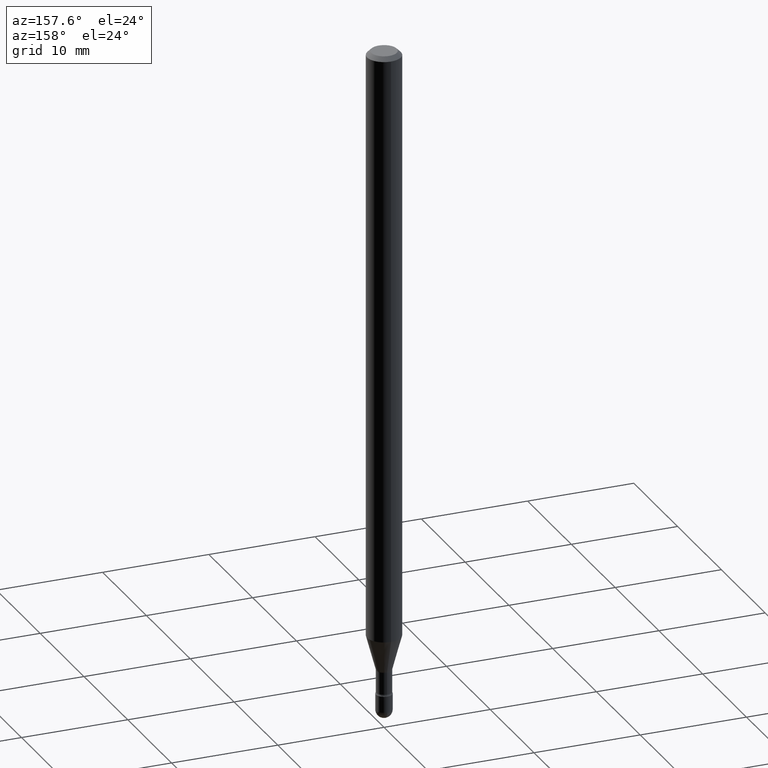
[diagram: clean part render]
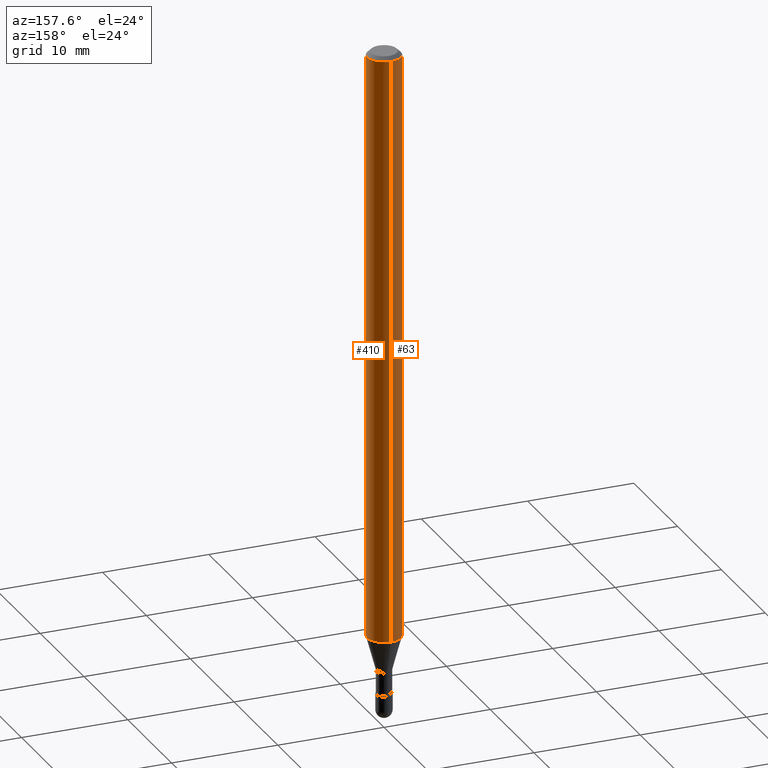
[diagram: same view with one multi-face feature highlighted, each face labeled with its STEP entity id]
A machine part, auxiliary view. The highlighted faces form ONE feature: a constant-radius fillet chain: 2 tangent blend faces with common blend radius 1.5875 mm. The faces share edges in the B-rep.
Their STEP definitions:
[1] entity #410 (Cylinder):
#15 = EDGE_CURVE ( 'NONE', #303, #379, #208, .T. ) ;
#42 = CARTESIAN_POINT ( 'NONE',  ( 4.440892098501159629E-16, 0.06249999999999233252, -2.191990657300388001 ) ) ;
#50 = ORIENTED_EDGE ( 'NONE', *, *, #361, .T. ) ;
#66 = DIRECTION ( 'NONE',  ( -6.982962677686265922E-15, -1.000000000000000000, 4.370956789862821150E-15 ) ) ;
#89 = ORIENTED_EDGE ( 'NONE', *, *, #15, .F. ) ;
#94 = DIRECTION ( 'NONE',  ( -2.445513622403205886E-29, 3.491417159468089197E-15, 1.000000000000000000 ) ) ;
#96 = DIRECTION ( 'NONE',  ( -2.445513622403205886E-29, 3.491417159468089591E-15, 1.000000000000000000 ) ) ;
#98 = CARTESIAN_POINT ( 'NONE',  ( -4.364351673553382241E-16, -0.06250000000000768829, -2.191990657300387557 ) ) ;
#111 = AXIS2_PLACEMENT_3D ( 'NONE', #384, #96, #269 ) ;
#123 = CARTESIAN_POINT ( 'NONE',  ( 3.668270433604828955E-31, -5.237125739202163402E-17, -0.01500000000000008271 ) ) ;
#187 = LINE ( 'NONE', #342, #232 ) ;
#208 = CIRCLE ( 'NONE', #218, 0.06250000000000000000 ) ;
#218 = AXIS2_PLACEMENT_3D ( 'NONE', #123, #298, #468 ) ;
#228 = CARTESIAN_POINT ( 'NONE',  ( -4.364351673553912750E-16, -0.06250000000000005551, -0.01499999999999986587 ) ) ;
#232 = VECTOR ( 'NONE', #473, 39.37007874015748143 ) ;
#236 = CARTESIAN_POINT ( 'NONE',  ( -4.364351673553916201E-16, -0.06250000000000000000, 6.962869713580016380E-16 ) ) ;
#239 = EDGE_CURVE ( 'NONE', #346, #303, #308, .T. ) ;
#269 = DIRECTION ( 'NONE',  ( -6.982962677686265922E-15, -1.000000000000000000, 3.491417159468089197E-15 ) ) ;
#275 = FACE_OUTER_BOUND ( 'NONE', #311, .T. ) ;
#288 = DIRECTION ( 'NONE',  ( -2.445513622403205886E-29, 3.491417159468089591E-15, 1.000000000000000000 ) ) ;
#298 = DIRECTION ( 'NONE',  ( -2.445513622403205886E-29, 3.491417159468089591E-15, 1.000000000000000000 ) ) ;
#303 = VERTEX_POINT ( 'NONE', #228 ) ;
#308 = LINE ( 'NONE', #236, #404 ) ;
#311 = EDGE_LOOP ( 'NONE', ( #50, #555, #89, #553 ) ) ;
#342 = CARTESIAN_POINT ( 'NONE',  ( 4.440892098500625669E-16, 0.06250000000000000000, 2.598598264244904884E-16 ) ) ;
#346 = VERTEX_POINT ( 'NONE', #98 ) ;
#361 = EDGE_CURVE ( 'NONE', #346, #522, #372, .T. ) ;
#372 = CIRCLE ( 'NONE', #411, 0.06250000000000000000 ) ;
#375 = CARTESIAN_POINT ( 'NONE',  ( 4.440892098501165545E-16, 0.06249999999999995143, -0.01500000000000030129 ) ) ;
#379 = VERTEX_POINT ( 'NONE', #375 ) ;
#384 = CARTESIAN_POINT ( 'NONE',  ( -1.169113584055446105E-44, 1.669184350826100908E-30, 4.780733988912460139E-16 ) ) ;
#404 = VECTOR ( 'NONE', #94, 39.37007874015748143 ) ;
#410 = ADVANCED_FACE ( 'NONE', ( #275 ), #559, .T. ) ;
#411 = AXIS2_PLACEMENT_3D ( 'NONE', #543, #288, #66 ) ;
#468 = DIRECTION ( 'NONE',  ( -6.982962677686265922E-15, -1.000000000000000000, 3.483106191921935554E-15 ) ) ;
#473 = DIRECTION ( 'NONE',  ( -2.445513622403205886E-29, 3.491417159468089197E-15, 1.000000000000000000 ) ) ;
#522 = VERTEX_POINT ( 'NONE', #42 ) ;
#525 = EDGE_CURVE ( 'NONE', #522, #379, #187, .T. ) ;
#543 = CARTESIAN_POINT ( 'NONE',  ( 5.360543012608655241E-29, -7.653153794292311533E-15, -2.191990657300388001 ) ) ;
#553 = ORIENTED_EDGE ( 'NONE', *, *, #239, .F. ) ;
#555 = ORIENTED_EDGE ( 'NONE', *, *, #525, .T. ) ;
#559 = CYLINDRICAL_SURFACE ( 'NONE', #111, 0.06250000000000000000 ) ;
[2] entity #63 (Cylinder):
#5 = EDGE_LOOP ( 'NONE', ( #270, #129, #211, #274 ) ) ;
#12 = CARTESIAN_POINT ( 'NONE',  ( 3.668270433604828955E-31, -5.237125739202163402E-17, -0.01500000000000008271 ) ) ;
#42 = CARTESIAN_POINT ( 'NONE',  ( 4.440892098501159629E-16, 0.06249999999999233252, -2.191990657300388001 ) ) ;
#57 = EDGE_CURVE ( 'NONE', #522, #346, #243, .T. ) ;
#63 = ADVANCED_FACE ( 'NONE', ( #566 ), #475, .T. ) ;
#94 = DIRECTION ( 'NONE',  ( -2.445513622403205886E-29, 3.491417159468089197E-15, 1.000000000000000000 ) ) ;
#98 = CARTESIAN_POINT ( 'NONE',  ( -4.364351673553382241E-16, -0.06250000000000768829, -2.191990657300387557 ) ) ;
#129 = ORIENTED_EDGE ( 'NONE', *, *, #57, .T. ) ;
#132 = CARTESIAN_POINT ( 'NONE',  ( -1.169113584055446105E-44, 1.669184350826100908E-30, 4.780733988912460139E-16 ) ) ;
#187 = LINE ( 'NONE', #342, #232 ) ;
#211 = ORIENTED_EDGE ( 'NONE', *, *, #239, .T. ) ;
#223 = DIRECTION ( 'NONE',  ( -6.982962677686265922E-15, -1.000000000000000000, 4.370956789862821150E-15 ) ) ;
#228 = CARTESIAN_POINT ( 'NONE',  ( -4.364351673553912750E-16, -0.06250000000000005551, -0.01499999999999986587 ) ) ;
#232 = VECTOR ( 'NONE', #473, 39.37007874015748143 ) ;
#236 = CARTESIAN_POINT ( 'NONE',  ( -4.364351673553916201E-16, -0.06250000000000000000, 6.962869713580016380E-16 ) ) ;
#239 = EDGE_CURVE ( 'NONE', #346, #303, #308, .T. ) ;
#243 = CIRCLE ( 'NONE', #327, 0.06250000000000000000 ) ;
#257 = DIRECTION ( 'NONE',  ( -2.445513622403205886E-29, 3.491417159468089591E-15, 1.000000000000000000 ) ) ;
#266 = DIRECTION ( 'NONE',  ( -2.445513622403205886E-29, 3.491417159468089591E-15, 1.000000000000000000 ) ) ;
#270 = ORIENTED_EDGE ( 'NONE', *, *, #525, .F. ) ;
#274 = ORIENTED_EDGE ( 'NONE', *, *, #396, .F. ) ;
#303 = VERTEX_POINT ( 'NONE', #228 ) ;
#308 = LINE ( 'NONE', #236, #404 ) ;
#327 = AXIS2_PLACEMENT_3D ( 'NONE', #560, #519, #223 ) ;
#342 = CARTESIAN_POINT ( 'NONE',  ( 4.440892098500625669E-16, 0.06250000000000000000, 2.598598264244904884E-16 ) ) ;
#346 = VERTEX_POINT ( 'NONE', #98 ) ;
#350 = CIRCLE ( 'NONE', #527, 0.06250000000000000000 ) ;
#375 = CARTESIAN_POINT ( 'NONE',  ( 4.440892098501165545E-16, 0.06249999999999995143, -0.01500000000000030129 ) ) ;
#379 = VERTEX_POINT ( 'NONE', #375 ) ;
#388 = DIRECTION ( 'NONE',  ( -6.982962677686265922E-15, -1.000000000000000000, 3.491417159468089197E-15 ) ) ;
#396 = EDGE_CURVE ( 'NONE', #379, #303, #350, .T. ) ;
#404 = VECTOR ( 'NONE', #94, 39.37007874015748143 ) ;
#473 = DIRECTION ( 'NONE',  ( -2.445513622403205886E-29, 3.491417159468089197E-15, 1.000000000000000000 ) ) ;
#475 = CYLINDRICAL_SURFACE ( 'NONE', #497, 0.06250000000000000000 ) ;
#497 = AXIS2_PLACEMENT_3D ( 'NONE', #132, #266, #388 ) ;
#511 = DIRECTION ( 'NONE',  ( -6.982962677686265922E-15, -1.000000000000000000, 3.483106191921935554E-15 ) ) ;
#519 = DIRECTION ( 'NONE',  ( -2.445513622403205886E-29, 3.491417159468089591E-15, 1.000000000000000000 ) ) ;
#522 = VERTEX_POINT ( 'NONE', #42 ) ;
#525 = EDGE_CURVE ( 'NONE', #522, #379, #187, .T. ) ;
#527 = AXIS2_PLACEMENT_3D ( 'NONE', #12, #257, #511 ) ;
#560 = CARTESIAN_POINT ( 'NONE',  ( 5.360543012608655241E-29, -7.653153794292311533E-15, -2.191990657300388001 ) ) ;
#566 = FACE_OUTER_BOUND ( 'NONE', #5, .T. ) ;